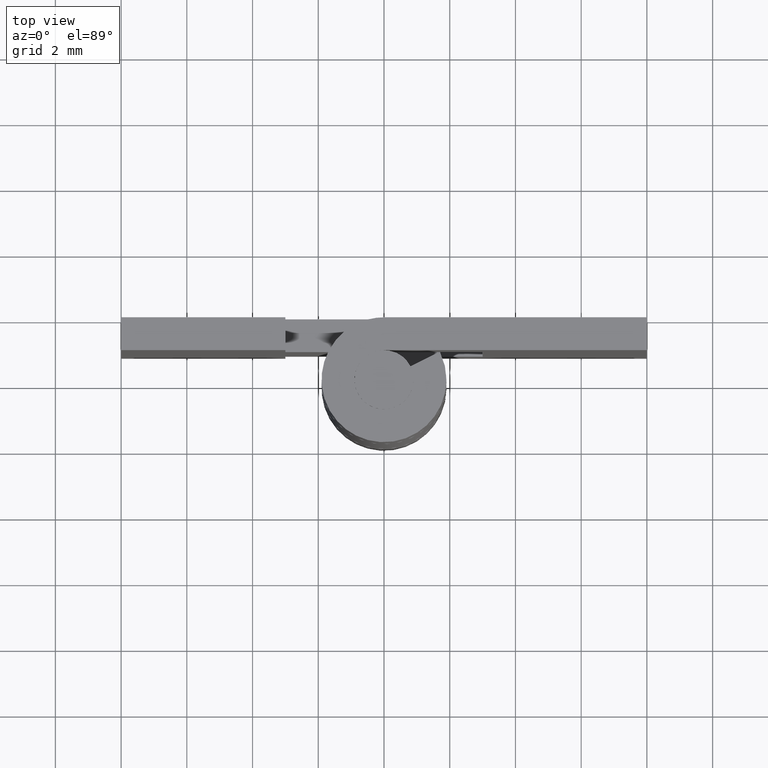
[diagram: clean part render]
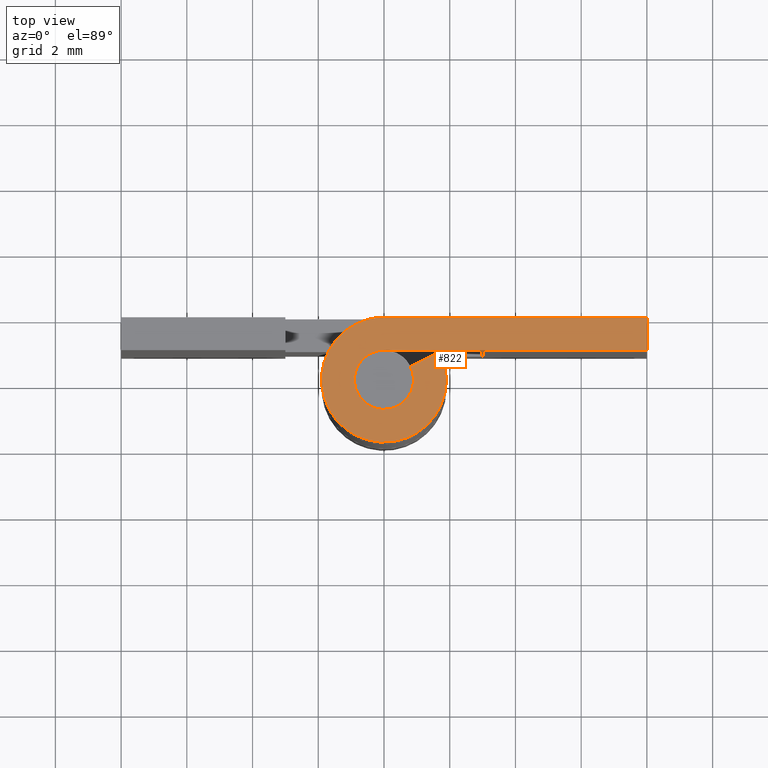
[diagram: same view with one face highlighted and labeled with its STEP entity id]
A machine part, top view. The second image highlights one B-rep face of the part: STEP entity #822.
In plain terms, the highlighted face is a freeform B-spline surface patch.
Its self-contained STEP definition (entity closure, byte-faithful):
#745=CARTESIAN_POINT('',(-2.394185655401506,-2.088530167716494,15.0));
#746=CARTESIAN_POINT('',(8.494490054853619,-2.088530167716494,15.0));
#747=CARTESIAN_POINT('',(-2.394185655401506,2.089751303676775,15.0));
#748=CARTESIAN_POINT('',(8.494490054853619,2.089751303676775,15.0));
#749=B_SPLINE_SURFACE_WITH_KNOTS('',1,1,((#745,#747),(#746,#748)),.UNSPECIFIED.,.F.,.F.,.U.,(2,2),(2,2),(0.0,10.888675710255130),(0.0,4.178281471393269),.UNSPECIFIED.);
#750=CARTESIAN_POINT('',(-3.490132E-016,1.900002000000000,15.0));
#751=VERTEX_POINT('',#750);
#752=CARTESIAN_POINT('',(8.0,1.900002000000000,15.0));
#753=VERTEX_POINT('',#752);
#754=CARTESIAN_POINT('',(-3.490132E-016,1.900002000000000,15.0));
#755=CARTESIAN_POINT('',(8.0,1.900002000000000,15.0));
#756=QUASI_UNIFORM_CURVE('',1,(#754,#755),.UNSPECIFIED.,.F.,.U.);
#757=EDGE_CURVE('',#751,#753,#756,.T.);
#758=ORIENTED_EDGE('',*,*,#757,.F.);
#759=CARTESIAN_POINT('',(1.699263546362365,0.850002000000000,15.0));
#760=VERTEX_POINT('',#759);
#761=CARTESIAN_POINT('',(1.699263546362365,0.850002000000000,15.0));
#762=CARTESIAN_POINT('',(2.341459044320518,-0.433832299740516,14.999999999999998));
#763=CARTESIAN_POINT('',(1.281939095922510,-1.402368288325415,15.0));
#764=CARTESIAN_POINT('',(0.222419147524502,-2.370904276910313,14.999999999999998));
#765=CARTESIAN_POINT('',(-0.998750212244924,-1.616325724040879,15.0));
#766=CARTESIAN_POINT('',(-2.219919572014351,-0.861747171171443,14.999999999999998));
#767=CARTESIAN_POINT('',(-1.827706682082136,0.519127687913574,15.0));
#768=CARTESIAN_POINT('',(-1.435493792149920,1.900002546998590,14.999999999999998));
#769=CARTESIAN_POINT('',(-3.490132E-016,1.900002000000000,15.0));
#777=(BOUNDED_CURVE()B_SPLINE_CURVE(2,(#761,#762,#763,#764,#765,#766,#767,#768,#769),.UNSPECIFIED.,.F.,.U.)B_SPLINE_CURVE_WITH_KNOTS((3,2,2,2,3),(0.0,0.250000000000000,0.500000000000000,0.750000000000000,1.0),.UNSPECIFIED.)CURVE()GEOMETRIC_REPRESENTATION_ITEM()RATIONAL_B_SPLINE_CURVE((1.0,0.797879883149118,1.0,0.797879883149118,1.0,0.797879883149118,1.0,0.797879883149118,1.0))REPRESENTATION_ITEM(''));
#778=EDGE_CURVE('',#760,#751,#777,.T.);
#779=ORIENTED_EDGE('',*,*,#778,.F.);
#780=CARTESIAN_POINT('',(0.804916100133275,0.402633421054737,15.0));
#781=VERTEX_POINT('',#780);
#782=CARTESIAN_POINT('',(0.804916100133275,0.402633421054737,15.0));
#783=CARTESIAN_POINT('',(1.699263546362365,0.850002000000000,15.0));
#784=QUASI_UNIFORM_CURVE('',1,(#782,#783),.UNSPECIFIED.,.F.,.U.);
#785=EDGE_CURVE('',#781,#760,#784,.T.);
#786=ORIENTED_EDGE('',*,*,#785,.F.);
#787=CARTESIAN_POINT('',(0.0,0.900002000000000,15.0));
#788=VERTEX_POINT('',#787);
#789=CARTESIAN_POINT('',(0.804916100133274,0.402633421054737,15.0));
#790=CARTESIAN_POINT('',(1.109114841357827,-0.205499067824347,14.999999999999995));
#791=CARTESIAN_POINT('',(0.607236217708155,-0.664279892746645,15.0));
#792=CARTESIAN_POINT('',(0.105357594058483,-1.123060717668943,14.999999999999995));
#793=CARTESIAN_POINT('',(-0.473092335484255,-0.765628658103948,15.0));
#794=CARTESIAN_POINT('',(-1.051542265026994,-0.408196598538954,14.999999999999995));
#795=CARTESIAN_POINT('',(-0.865757160973812,0.245902700730524,15.0));
#796=CARTESIAN_POINT('',(-0.679972056920630,0.900002000000000,14.999999999999995));
#797=CARTESIAN_POINT('',(0.0,0.900002000000000,15.0));
#805=(BOUNDED_CURVE()B_SPLINE_CURVE(2,(#789,#790,#791,#792,#793,#794,#795,#796,#797),.UNSPECIFIED.,.F.,.U.)B_SPLINE_CURVE_WITH_KNOTS((3,2,2,2,3),(0.0,0.250000000000000,0.500000000000000,0.750000000000000,1.0),.UNSPECIFIED.)CURVE()GEOMETRIC_REPRESENTATION_ITEM()RATIONAL_B_SPLINE_CURVE((1.0,0.797879883149118,1.0,0.797879883149118,1.0,0.797879883149118,1.0,0.797879883149118,1.0))REPRESENTATION_ITEM(''));
#806=EDGE_CURVE('',#781,#788,#805,.T.);
#807=ORIENTED_EDGE('',*,*,#806,.T.);
#808=CARTESIAN_POINT('',(8.0,0.900002000000000,15.0));
#809=VERTEX_POINT('',#808);
#810=CARTESIAN_POINT('',(8.0,0.900002000000000,15.0));
#811=CARTESIAN_POINT('',(0.0,0.900002000000000,15.0));
#812=QUASI_UNIFORM_CURVE('',1,(#810,#811),.UNSPECIFIED.,.F.,.U.);
#813=EDGE_CURVE('',#809,#788,#812,.T.);
#814=ORIENTED_EDGE('',*,*,#813,.F.);
#815=CARTESIAN_POINT('',(8.0,1.900002000000000,15.0));
#816=CARTESIAN_POINT('',(8.0,0.900002000000000,15.0));
#817=QUASI_UNIFORM_CURVE('',1,(#815,#816),.UNSPECIFIED.,.F.,.U.);
#818=EDGE_CURVE('',#753,#809,#817,.T.);
#819=ORIENTED_EDGE('',*,*,#818,.F.);
#820=EDGE_LOOP('',(#758,#779,#786,#807,#814,#819));
#821=FACE_OUTER_BOUND('',#820,.T.);
#822=ADVANCED_FACE('',(#821),#749,.T.);